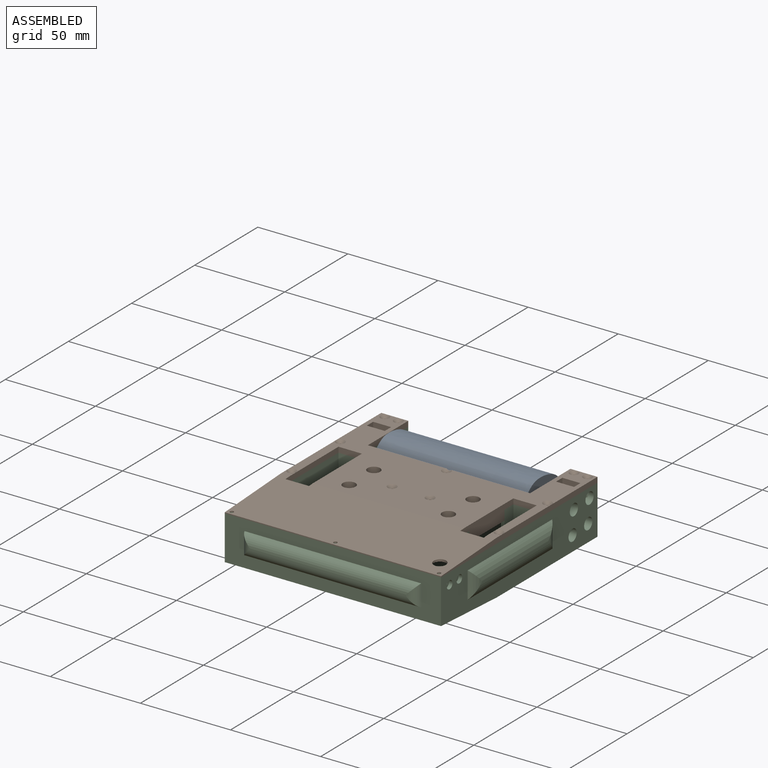
[diagram: assembled view]
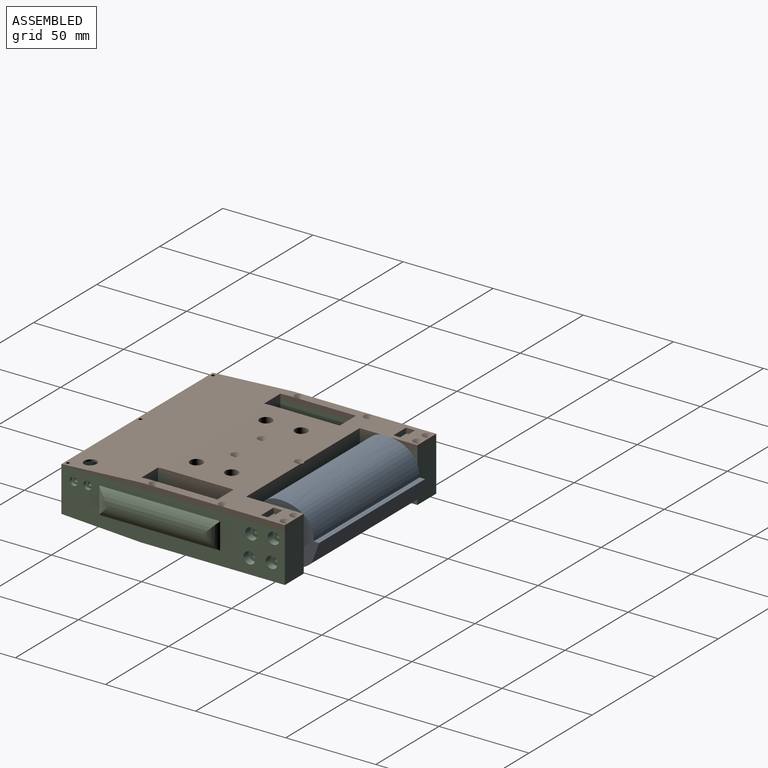
[diagram: assembled view, second angle]
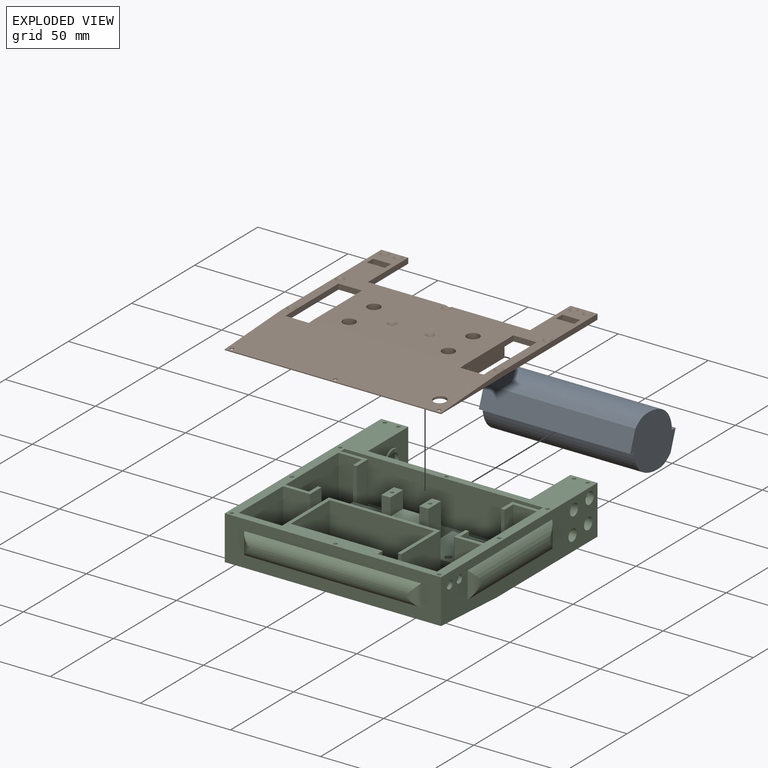
[diagram: exploded view]
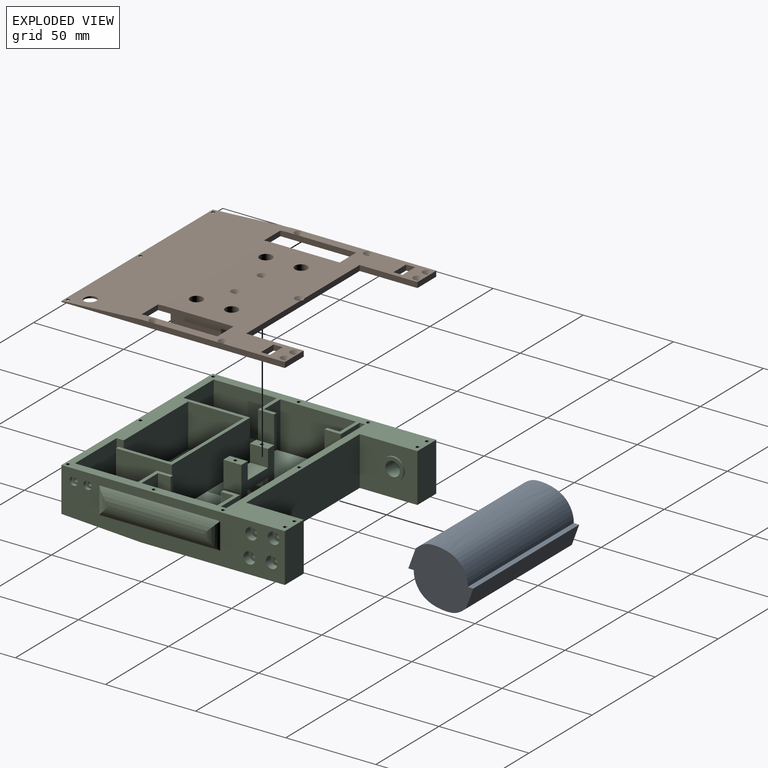
[diagram: exploded view, second angle]
ASSEMBLY  parts=3 mates=2
PART A: 10 faces, bbox 84x30.2x34 mm
  f0: extruded ~84x17mm, area 1721.2mm2, adj f1,f7,f8,f9
  f1: cylinder r=15mm len=84mm, axis (1,0,0), area 1557.2mm2, adj f0,f2,f8,f9
  f2: plane 84x2.83mm, normal (0,0.94,0.33), area 252mm2, adj f1,f3,f8,f9
  f3: plane 84x11.83mm, normal (0,0,-1), area 993.9mm2, adj f2,f4,f8,f9
  f4: extruded ~84x17mm, area 1721.2mm2, adj f3,f5,f8,f9
  f5: cylinder r=15mm len=84mm, axis (1,0,0), area 1557.2mm2, adj f4,f6,f8,f9
  f6: plane 84x2.83mm, normal (0,-0.94,-0.33), area 252mm2, adj f5,f7,f8,f9
  f7: plane 84x11.83mm, normal (0,0,1), area 993.9mm2, adj f0,f6,f8,f9
  f8: plane 34x30.18mm, normal (-1,0,0), area 811.5mm2, adj f0,f1,f2,f3,f4,f5,f6,f7
  f9: plane 34x30.18mm, normal (1,0,0), area 811.5mm2, adj f0,f1,f2,f3,f4,f5,f6,f7
PART B: 75 faces, bbox 120.1x124.1x8.6 mm
  f0: plane 124x3mm, normal (-1,0,0), area 316.6mm2, adj f2,f3,f15,f19,f24,f74
  f1: plane 124x3mm, normal (1,0,0), area 316.6mm2, adj f3,f4,f15,f19,f20,f74
  f2: plane 5.25x5mm, normal (0,0,1), area 16.4mm2, adj f0,f9,f65,f74
  f3: plane 120x79.71mm, normal (0,0,1), area 5177.4mm2, adj f0,f1,f9,f10,f12,f13,f20,f21
  f4: plane 5.25x5mm, normal (0,0,1), area 16.4mm2, adj f1,f12,f58,f74
  f5: cylinder r=1mm len=2mm, axis (0,0,-1), area 3.9mm2, adj f15,f74
  f6: cylinder r=1mm len=2mm, axis (0,0,-1), area 3.9mm2, adj f15,f74
  f7: cylinder r=1mm len=2mm, axis (0,0,-1), area 3.9mm2, adj f15,f74
  f8: plane 13x2.81mm, normal (0,1,0), area 36.6mm2, adj f9,f10,f15,f74
  f9: plane 42x3mm, normal (1,0,0), area 125.7mm2, adj f2,f3,f8,f15,f51,f74
  f10: plane 42x8.5mm, normal (-1,0,0), area 279.7mm2, adj f3,f8,f15,f16,f17,f18,f51,f74
  f11: plane 13x2.81mm, normal (0,1,0), area 36.6mm2, adj f12,f13,f15,f74
  f12: plane 42x3mm, normal (-1,0,0), area 125.7mm2, adj f3,f4,f11,f15,f52,f74
  f13: plane 42x8.5mm, normal (1,0,0), area 279.7mm2, adj f3,f11,f15,f25,f27,f28,f52,f74
  f14: cylinder r=3.5mm len=7mm, axis (0,0,1), area 23.9mm2, adj f15,f74
  f15: plane 124x120mm, normal (0,0,-1), area 9328mm2, adj f0,f1,f5,f6,f7,f8,f9,f10
  f16: plane 24.96x5.5mm, normal (0,-1,0), area 137.3mm2, adj f10,f15,f18,f29
  f17: plane 24.96x5.5mm, normal (0,1,0), area 137.3mm2, adj f10,f15,f18,f29
  f18: plane 28x24.96mm, normal (0,0,-1), area 678.9mm2, adj f10,f16,f17,f29,f49,f50
  f19: plane 120x0.5mm, normal (0,-1,0), area 60mm2, adj f0,f1,f15,f74
  f20: plane 15x3mm, normal (0,1,0), area 45mm2, adj f1,f3,f15,f21
  f21: plane 32x3mm, normal (-1,0,0), area 96mm2, adj f3,f15,f20,f22
  f22: plane 90x3mm, normal (0,1,0), area 269mm2, adj f3,f15,f21,f23,f55
  f23: plane 32x3mm, normal (1,0,0), area 96mm2, adj f3,f15,f22,f24
  f24: plane 15x3mm, normal (0,1,0), area 45mm2, adj f0,f3,f15,f23
  f25: plane 24.96x5.5mm, normal (0,1,0), area 137.3mm2, adj f13,f15,f26,f28
  f26: plane 28x5.5mm, normal (-1,0,0), area 154mm2, adj f15,f25,f27,f28
  f27: plane 24.96x5.5mm, normal (0,-1,0), area 137.3mm2, adj f13,f15,f26,f28
  f28: plane 28x24.96mm, normal (0,0,-1), area 678.9mm2, adj f13,f25,f26,f27,f47,f48
  f29: plane 28x5.5mm, normal (1,0,0), area 154mm2, adj f15,f16,f17,f18
  f30: cylinder r=1mm len=2mm, axis (0,0,-1), area 9.4mm2, adj f15,f63
  f31: cylinder r=1mm len=2mm, axis (0,0,-1), area 9.4mm2, adj f15,f59
  f32: cylinder r=1mm len=2mm, axis (0,0,-1), area 9.4mm2, adj f15,f58
  f33: cylinder r=1mm len=2mm, axis (0,0,-1), area 9.4mm2, adj f15,f61
  f34: cylinder r=1mm len=2mm, axis (0,0,-1), area 9.4mm2, adj f15,f60
  f35: cylinder r=1mm len=2mm, axis (0,0,-1), area 9.4mm2, adj f15,f55
  f36: cylinder r=1mm len=2mm, axis (0,0,-1), area 9.4mm2, adj f15,f65
  f37: cylinder r=1mm len=2mm, axis (0,0,-1), area 9.4mm2, adj f15,f64
  f38: cylinder r=1mm len=2mm, axis (0,0,-1), area 9.4mm2, adj f15,f62
  f39: cylinder r=3.5mm len=7mm, axis (0,0,1), area 88mm2, adj f3,f40
  f40: plane 7x7mm, normal (0,0,1), area 28.6mm2, adj f39,f50
  f41: cylinder r=3.5mm len=7mm, axis (0,0,1), area 88mm2, adj f3,f42
  f42: plane 7x7mm, normal (0,0,1), area 28.6mm2, adj f41,f49
  f43: cylinder r=3.5mm len=7mm, axis (0,0,1), area 88mm2, adj f3,f44
  f44: plane 7x7mm, normal (0,0,1), area 28.6mm2, adj f43,f48
  f45: cylinder r=3.5mm len=7mm, axis (0,0,1), area 88mm2, adj f3,f46
  f46: plane 7x7mm, normal (0,0,1), area 28.6mm2, adj f45,f47
  f47: cylinder r=1.78mm len=4.5mm, axis (0,0,-1), area 50.3mm2, adj f28,f46
  f48: cylinder r=1.78mm len=4.5mm, axis (0,0,-1), area 50.3mm2, adj f28,f44
  f49: cylinder r=1.78mm len=4.5mm, axis (0,0,-1), area 50.3mm2, adj f18,f42
  f50: cylinder r=1.78mm len=4.5mm, axis (0,0,-1), area 50.3mm2, adj f18,f40
  f51: plane 13x3mm, normal (0,-1,0), area 39mm2, adj f3,f9,f10,f15
  f52: plane 13x3mm, normal (0,-1,0), area 39mm2, adj f3,f12,f13,f15
  f53: cylinder r=1mm len=2mm, axis (0,0,-1), area 9.4mm2, adj f15,f56
  f54: cylinder r=1mm len=2mm, axis (0,0,-1), area 9.4mm2, adj f15,f57
  f55: cone r=1mm half-angle=45deg, axis (0,0,1), area 21.9mm2, adj f3,f22,f35
  f56: cone r=1mm half-angle=45deg, axis (0,0,1), area 23.3mm2, adj f3,f53
  f57: cone r=2.5mm half-angle=45deg, axis (0,0,1), area 23.3mm2, adj f3,f54
  f58: cone r=2.5mm half-angle=45deg, axis (0,0,1), area 23.3mm2, adj f3,f4,f32
  f59: cone r=2.5mm half-angle=45deg, axis (0,0,1), area 23.3mm2, adj f3,f31
  f60: cone r=2.5mm half-angle=45deg, axis (0,0,1), area 23.3mm2, adj f3,f34
  f61: cone r=2.5mm half-angle=45deg, axis (0,0,1), area 23.3mm2, adj f3,f33
  f62: cone r=1mm half-angle=45deg, axis (0,0,1), area 23.3mm2, adj f3,f38
  f63: cone r=1mm half-angle=45deg, axis (0,0,1), area 23.3mm2, adj f3,f30
  f64: cone r=1mm half-angle=45deg, axis (0,0,1), area 23.3mm2, adj f3,f37
  f65: cone r=1mm half-angle=45deg, axis (0,0,1), area 23.3mm2, adj f2,f3,f36
  f66: plane 10x3mm, normal (0,1,0), area 30mm2, adj f3,f15,f67,f69
  f67: plane 5x3mm, normal (-1,0,0), area 15mm2, adj f3,f15,f66,f68
  f68: plane 10x3mm, normal (0,-1,0), area 30mm2, adj f3,f15,f67,f69
  f69: plane 5x3mm, normal (1,0,0), area 15mm2, adj f3,f15,f66,f68
  f70: plane 5x3mm, normal (1,0,0), area 15mm2, adj f3,f15,f71,f73
  f71: plane 10x3mm, normal (0,1,0), area 30mm2, adj f3,f15,f70,f72
  f72: plane 5x3mm, normal (-1,0,0), area 15mm2, adj f3,f15,f71,f73
  f73: plane 10x3mm, normal (0,-1,0), area 30mm2, adj f3,f15,f70,f72
  f74: plane 120.08x44.37mm, normal (0,-0.06,1), area 5189.2mm2, adj f0,f1,f2,f3,f4,f5,f6,f7
PART C: 167 faces, bbox 126x128x27 mm
  f0: plane 33x24mm, normal (0,1,0), area 792mm2, adj f18,f29,f43,f164
  f1: plane 5x4mm, normal (0,-1,0), area 20mm2, adj f18,f23,f111,f156
  f2: plane 18.5x10mm, normal (1,0,0), area 157mm2, adj f4,f67,f109,f112,f139,f157
  f3: plane 18.5x10mm, normal (-1,0,0), area 157mm2, adj f4,f64,f109,f110,f139,f155
  f4: plane 26.09x14.5mm, normal (0,-1,0), area 225.4mm2, adj f2,f3,f14,f15,f110,f112,f139,f140
  f5: plane 10x9.5mm, normal (1,0,0), area 56.5mm2, adj f18,f108,f109,f139,f154,f155
  f6: plane 124x27mm, normal (1,0,0), area 2137.4mm2, adj f29,f30,f31,f37,f53,f54,f55,f56
  f7: plane 124x27mm, normal (-1,0,0), area 2100.9mm2, adj f29,f30,f31,f32,f33,f34,f35,f41
  f8: cylinder r=1.5mm len=11mm, axis (1,0,0), area 103.7mm2, adj f38,f152
  f9: cylinder r=1.5mm len=11mm, axis (1,0,0), area 103.7mm2, adj f38,f150
  f10: cylinder r=1.5mm len=11mm, axis (1,0,0), area 103.7mm2, adj f38,f148
  f11: cylinder r=1.5mm len=11mm, axis (1,0,0), area 103.7mm2, adj f38,f146
  f12: cylinder r=1.1mm len=3mm, axis (-1,0,0), area 20.7mm2, adj f43,f144
  f13: cylinder r=1.25mm len=3mm, axis (-1,0,0), area 23.6mm2, adj f43,f142
  f14: plane 10x9.5mm, normal (1,0,0), area 95mm2, adj f4,f109,f110,f140
  f15: plane 10x9.5mm, normal (-1,0,0), area 95mm2, adj f4,f109,f112,f140
  f16: plane 26.96x5.5mm, normal (0,1,0), area 148.3mm2, adj f18,f65,f67,f128
  f17: plane 24x3mm, normal (-1,0,0), area 72mm2, adj f18,f29,f44,f127
  f18: plane 110x84mm, normal (0,0,1), area 5794.5mm2, adj f0,f1,f5,f16,f17,f19,f20,f23
  f19: plane 26.96x5.5mm, normal (0,1,0), area 148.3mm2, adj f18,f62,f64,f125
  f20: plane 24x3mm, normal (1,0,0), area 72mm2, adj f18,f29,f44,f124
  f21: plane 42x27mm, normal (-1,0,0), area 1133.7mm2, adj f29,f30,f47,f48,f153
  f22: plane 42x27mm, normal (1,0,0), area 1133.7mm2, adj f29,f30,f49,f51,f153
  f23: plane 16x5.5mm, normal (-1,0,0), area 60mm2, adj f1,f18,f66,f67,f156,f157
  f24: plane 16x5.5mm, normal (1,0,0), area 60mm2, adj f18,f63,f64,f108,f154,f155
  f25: cylinder r=1.78mm len=4.5mm, axis (0,0,1), area 50.3mm2, adj f67,f99
  f26: cylinder r=1.78mm len=4.5mm, axis (0,0,1), area 50.3mm2, adj f67,f97
  f27: cylinder r=1.78mm len=4.5mm, axis (0,0,1), area 50.3mm2, adj f64,f95
  f28: cylinder r=1.78mm len=4.5mm, axis (0,0,1), area 50.3mm2, adj f64,f93
  f29: plane 124x120mm, normal (0,0,1), area 3354.3mm2, adj f0,f6,f7,f17,f20,f21,f22,f31
  f30: plane 120x79.71mm, normal (0,0,-1), area 5425.2mm2, adj f6,f7,f21,f22,f37,f38,f39,f40
  f31: plane 120x24.5mm, normal (0,-1,0), area 1764mm2, adj f6,f7,f29,f58,f59,f60,f61,f153
  f32: cylinder r=10mm len=14.78mm, axis (0,0,1), area 64mm2, adj f7,f33,f34,f36
  f33: cylinder r=10mm len=67.03mm, axis (0,-1,0), area 479.5mm2, adj f7,f32,f35,f36
  f34: cylinder r=10mm len=67.03mm, axis (0,-1,0), area 479.5mm2, adj f7,f32,f35,f36
  f35: cylinder r=10mm len=14.78mm, axis (0,0,-1), area 64mm2, adj f7,f33,f34,f36
  f36: plane 52.74x0.5mm, normal (-1,0,0), area 26.3mm2, adj f32,f33,f34,f35
  f37: plane 27x15mm, normal (0,1,0), area 405mm2, adj f6,f29,f30,f38
  f38: plane 36x27mm, normal (-1,0,0), area 875.7mm2, adj f8,f9,f10,f11,f29,f30,f37,f39
  f39: plane 90x27mm, normal (0,1,0), area 2330mm2, adj f29,f30,f38,f40,f105,f106,f107
  f40: plane 32x27mm, normal (1,0,0), area 750.9mm2, adj f29,f30,f39,f41,f102
  f41: plane 27x15mm, normal (0,1,0), area 405mm2, adj f7,f29,f30,f40
  f42: plane 24x24mm, normal (0,1,0), area 576mm2, adj f18,f29,f45,f163
  f43: plane 35x24mm, normal (-1,0,0), area 831.3mm2, adj f0,f12,f13,f18,f29,f121
  f44: plane 110x24mm, normal (0,-1,0), area 2540mm2, adj f17,f18,f20,f29,f38,f105,f106,f107
  f45: plane 35x24mm, normal (1,0,0), area 840mm2, adj f18,f29,f42,f118
  f46: plane 42x27mm, normal (1,0,0), area 615.7mm2, adj f29,f30,f47,f48,f67,f120,f126,f153
  f47: plane 26.81x13mm, normal (0,1,0), area 348.6mm2, adj f21,f29,f46,f153
  f48: plane 27x13mm, normal (0,-1,0), area 351mm2, adj f21,f29,f30,f46
  f49: plane 26.81x13mm, normal (0,1,0), area 348.6mm2, adj f22,f29,f50,f153
  f50: plane 42x27mm, normal (-1,0,0), area 615.7mm2, adj f29,f30,f49,f51,f64,f117,f123,f153
  f51: plane 27x13mm, normal (0,-1,0), area 351mm2, adj f22,f29,f30,f50
  f52: plane 52.74x0.5mm, normal (1,0,0), area 26.3mm2, adj f53,f54,f55,f56
  f53: cylinder r=10mm len=14.78mm, axis (0,0,1), area 64mm2, adj f6,f52,f54,f55
  f54: cylinder r=10mm len=67.03mm, axis (0,-1,0), area 479.5mm2, adj f6,f52,f53,f56
  f55: cylinder r=10mm len=67.03mm, axis (0,-1,0), area 479.5mm2, adj f6,f52,f53,f56
  f56: cylinder r=10mm len=14.78mm, axis (0,0,-1), area 64mm2, adj f6,f52,f54,f55
  f57: plane 86.69x0.69mm, normal (0,-1,0), area 59.5mm2, adj f58,f59,f60,f61
  f58: cylinder r=6mm len=12mm, axis (0,0,1), area 53.1mm2, adj f31,f57,f59,f60
  f59: cylinder r=6mm len=98mm, axis (-1,0,0), area 688.2mm2, adj f31,f57,f58,f61
  f60: cylinder r=6mm len=98mm, axis (-1,0,0), area 688.2mm2, adj f31,f57,f58,f61
  f61: cylinder r=6mm len=12mm, axis (0,0,1), area 53.1mm2, adj f31,f57,f59,f60
  f62: plane 9x5.5mm, normal (1,0,0), area 49.5mm2, adj f18,f19,f64,f109
  f63: plane 26.96x5.5mm, normal (0,-1,0), area 148.3mm2, adj f18,f24,f64,f119
  f64: plane 28.96x28mm, normal (0,0,1), area 790.9mm2, adj f3,f19,f24,f27,f28,f50,f62,f63
  f65: plane 9x5.5mm, normal (-1,0,0), area 49.5mm2, adj f16,f18,f67,f109
  f66: plane 26.96x5.5mm, normal (0,-1,0), area 148.3mm2, adj f18,f23,f67,f122
  f67: plane 28.96x28mm, normal (0,0,1), area 790.9mm2, adj f2,f16,f23,f25,f26,f46,f65,f66
  f68: cylinder r=1mm len=8mm, axis (0,0,1), area 50.3mm2, adj f29,f69
  f69: plane 2x2mm, normal (0,0,1), area 3.1mm2, adj f68
  f70: cylinder r=1mm len=8mm, axis (0,0,1), area 50.3mm2, adj f29,f71
  f71: plane 2x2mm, normal (0,0,1), area 3.1mm2, adj f70
  f72: cylinder r=1mm len=8mm, axis (0,0,1), area 50.3mm2, adj f29,f73
  f73: plane 2x2mm, normal (0,0,1), area 3.1mm2, adj f72
  f74: cylinder r=1mm len=8mm, axis (0,0,1), area 50.3mm2, adj f29,f75
  f75: plane 2x2mm, normal (0,0,1), area 3.1mm2, adj f74
  f76: cylinder r=1mm len=8mm, axis (0,0,1), area 50.3mm2, adj f29,f77
  f77: plane 2x2mm, normal (0,0,1), area 3.1mm2, adj f76
  f78: cylinder r=1mm len=8mm, axis (0,0,1), area 46.8mm2, adj f29,f79,f149,f150
  f79: plane 2x2mm, normal (0,0,1), area 3.1mm2, adj f78
  f80: cylinder r=1mm len=8mm, axis (0,0,1), area 50.3mm2, adj f29,f81
  f81: plane 2x2mm, normal (0,0,1), area 3.1mm2, adj f80
  f82: cylinder r=1mm len=8mm, axis (0,0,1), area 50.3mm2, adj f29,f83
  f83: plane 2x2mm, normal (0,0,1), area 3.1mm2, adj f82
  f84: cylinder r=1mm len=8mm, axis (0,0,1), area 50.3mm2, adj f29,f85
  f85: plane 2x2mm, normal (0,0,1), area 3.1mm2, adj f84
  f86: cylinder r=1mm len=8mm, axis (0,0,1), area 50.3mm2, adj f29,f87
  f87: plane 2x2mm, normal (0,0,1), area 3.1mm2, adj f86
  f88: cylinder r=1mm len=8mm, axis (0,0,1), area 50.3mm2, adj f29,f89
  f89: plane 2x2mm, normal (0,0,1), area 3.1mm2, adj f88
  f90: cylinder r=1mm len=8mm, axis (0,0,1), area 50.3mm2, adj f29,f91
  f91: plane 2x2mm, normal (0,0,1), area 3.1mm2, adj f90
  f92: cylinder r=3.5mm len=7mm, axis (0,0,-1), area 88mm2, adj f30,f93
  f93: plane 7x7mm, normal (0,0,-1), area 28.6mm2, adj f28,f92
  f94: cylinder r=3.5mm len=7mm, axis (0,0,-1), area 88mm2, adj f30,f95
  f95: plane 7x7mm, normal (0,0,-1), area 28.6mm2, adj f27,f94
  f96: cylinder r=3.5mm len=7mm, axis (0,0,-1), area 88mm2, adj f30,f97
  f97: plane 7x7mm, normal (0,0,-1), area 28.6mm2, adj f26,f96
  f98: cylinder r=3.5mm len=7mm, axis (0,0,-1), area 88mm2, adj f30,f99
  f99: plane 7x7mm, normal (0,0,-1), area 28.6mm2, adj f25,f98
  f100: cylinder r=8mm len=16mm, axis (-1,0,0), area 402.1mm2, adj f7,f101
  f101: plane 16x16mm, normal (-1,0,0), area 150.8mm2, adj f100,f104
  f102: cylinder r=6mm len=12mm, axis (-1,0,0), area 37.7mm2, adj f40,f103
  f103: plane 12x12mm, normal (1,0,0), area 62.8mm2, adj f102,f104
  f104: cylinder r=4mm len=8mm, axis (-1,0,0), area 201.1mm2, adj f101,f103
  f105: plane 10x4mm, normal (0,0,1), area 40mm2, adj f38,f39,f44,f106
  f106: plane 10x4mm, normal (1,0,0), area 40mm2, adj f39,f44,f105,f107
  f107: plane 10x4mm, normal (0,0,-1), area 40mm2, adj f38,f39,f44,f106
  f108: plane 5x4mm, normal (0,-1,0), area 20mm2, adj f5,f18,f24,f154
  f109: plane 26.09x24mm, normal (0,1,0), area 320.4mm2, adj f2,f3,f5,f14,f15,f18,f62,f65
  f110: plane 10x5mm, normal (0,0,1), area 46.9mm2, adj f3,f4,f14,f109,f115
  f111: plane 10x9.5mm, normal (-1,0,0), area 56.5mm2, adj f1,f18,f109,f139,f156,f157
  f112: plane 10x5mm, normal (0,0,1), area 46.9mm2, adj f2,f4,f15,f109,f113
  f113: cylinder r=1mm len=8mm, axis (0,0,1), area 50.3mm2, adj f112,f114
  f114: plane 2x2mm, normal (0,0,1), area 3.1mm2, adj f113
  f115: cylinder r=1mm len=8mm, axis (0,0,1), area 50.3mm2, adj f110,f116
  f116: plane 2x2mm, normal (0,0,1), area 3.1mm2, adj f115
  f117: plane 18.5x2mm, normal (0,1,0), area 37mm2, adj f29,f50,f64,f119
  f118: plane 24x15mm, normal (0,-1,0), area 360mm2, adj f18,f29,f45,f119
  f119: plane 24x9mm, normal (1,0,0), area 216mm2, adj f18,f29,f63,f117,f118
  f120: plane 18.5x2mm, normal (0,1,0), area 37mm2, adj f29,f46,f67,f122
  f121: plane 24x15mm, normal (0,-1,0), area 360mm2, adj f18,f29,f43,f122
  f122: plane 24x9mm, normal (-1,0,0), area 216mm2, adj f18,f29,f66,f120,f121
  f123: plane 18.5x2mm, normal (0,-1,0), area 37mm2, adj f29,f50,f64,f125
  f124: plane 24x15mm, normal (0,1,0), area 360mm2, adj f18,f20,f29,f125
  f125: plane 24x9mm, normal (1,0,0), area 216mm2, adj f18,f19,f29,f123,f124
  f126: plane 18.5x2mm, normal (0,-1,0), area 37mm2, adj f29,f46,f67,f128
  f127: plane 24x15mm, normal (0,1,0), area 360mm2, adj f17,f18,f29,f128
  f128: plane 24x9mm, normal (-1,0,0), area 216mm2, adj f16,f18,f29,f126,f127
  f129: plane 10x3mm, normal (0,-1,0), area 30mm2, adj f30,f130,f132,f133
  f130: plane 5x3mm, normal (-1,0,0), area 15mm2, adj f30,f129,f131,f133
  f131: plane 10x3mm, normal (0,1,0), area 30mm2, adj f30,f130,f132,f133
  f132: plane 5x3mm, normal (1,0,0), area 15mm2, adj f30,f129,f131,f133
  f133: plane 10x5mm, normal (0,0,-1), area 50mm2, adj f129,f130,f131,f132
  f134: plane 5x3mm, normal (1,0,0), area 15mm2, adj f30,f135,f137,f138
  f135: plane 10x3mm, normal (0,-1,0), area 30mm2, adj f30,f134,f136,f138
  f136: plane 5x3mm, normal (-1,0,0), area 15mm2, adj f30,f135,f137,f138
  f137: plane 10x3mm, normal (0,1,0), area 30mm2, adj f30,f134,f136,f138
  f138: plane 10x5mm, normal (0,0,-1), area 50mm2, adj f134,f135,f136,f137
  f139: plane 26.09x10mm, normal (0,0,-1), area 230.9mm2, adj f2,f3,f4,f5,f109,f111,f155,f157
  f140: plane 16.09x10mm, normal (0,0,1), area 160.9mm2, adj f4,f14,f15,f109
  f141: cylinder r=2.25mm len=4.5mm, axis (1,0,0), area 28.3mm2, adj f6,f142
  f142: plane 4.5x4.5mm, normal (1,0,0), area 11mm2, adj f13,f141
  f143: cylinder r=2.25mm len=4.5mm, axis (1,0,0), area 28.3mm2, adj f6,f144
  f144: plane 4.5x4.5mm, normal (1,0,0), area 12.1mm2, adj f12,f143
  f145: cylinder r=3.25mm len=6.5mm, axis (1,0,0), area 81.7mm2, adj f6,f146
  f146: plane 6.5x6.5mm, normal (1,0,0), area 26.1mm2, adj f11,f145
  f147: cylinder r=3.25mm len=6.5mm, axis (1,0,0), area 81.7mm2, adj f6,f148
  f148: plane 6.5x6.5mm, normal (1,0,0), area 26.1mm2, adj f10,f147
  f149: cylinder r=3.25mm len=6.5mm, axis (1,0,0), area 78.4mm2, adj f6,f78,f150
  f150: plane 6.5x6.06mm, normal (1,0,0), area 25.2mm2, adj f9,f78,f149
  f151: cylinder r=3.25mm len=6.5mm, axis (1,0,0), area 81.7mm2, adj f6,f152
  f152: plane 6.5x6.5mm, normal (1,0,0), area 26.1mm2, adj f8,f151
  f153: plane 120x44.29mm, normal (0,-0.06,-1), area 5237.2mm2, adj f6,f7,f21,f22,f30,f31,f46,f47
  f154: plane 7x5mm, normal (0,0,1), area 35mm2, adj f5,f24,f108,f155
  f155: plane 5.5x5mm, normal (0,-1,0), area 27.5mm2, adj f3,f5,f24,f139,f154
  f156: plane 7x5mm, normal (0,0,1), area 35mm2, adj f1,f23,f111,f157
  f157: plane 5.5x5mm, normal (0,-1,0), area 27.5mm2, adj f2,f23,f111,f139,f156
  f158: plane 58x24mm, normal (0,-1,0), area 1392mm2, adj f18,f29,f159,f166
  f159: plane 29x24mm, normal (-1,0,0), area 696mm2, adj f18,f29,f158,f160
  f160: plane 24x2mm, normal (0,-1,0), area 48mm2, adj f18,f29,f159,f161
  f161: plane 31x24mm, normal (1,0,0), area 744mm2, adj f18,f29,f160,f162
  f162: plane 62x24mm, normal (0,1,0), area 1488mm2, adj f18,f29,f161,f163
  f163: plane 37x24mm, normal (-1,0,0), area 888mm2, adj f18,f29,f42,f162
  f164: plane 24x4mm, normal (1,0,0), area 96mm2, adj f0,f18,f29,f165
  f165: plane 51x24mm, normal (0,1,0), area 1224mm2, adj f18,f29,f164,f166
  f166: plane 31x24mm, normal (1,0,0), area 744mm2, adj f18,f29,f158,f165
PLACE A rot(axis=(1,0,0),69.9deg) t=(10.75,44.38,-43.46)mm
PLACE B t=(11.75,-2.24,-55.23)mm
PLACE C rot(axis=(-0.01,-0.96,0.28),0deg) t=(11.75,-2.24,-8.23)mm
MATE revolute A.f1 <-> C.f100  axis (-1,0,0) through (-32.25,46.76,6.77)mm
MATE slider B.f32 <-> C.f74  axis (0,0,-1) through (69.25,-14.71,18.77)mm
